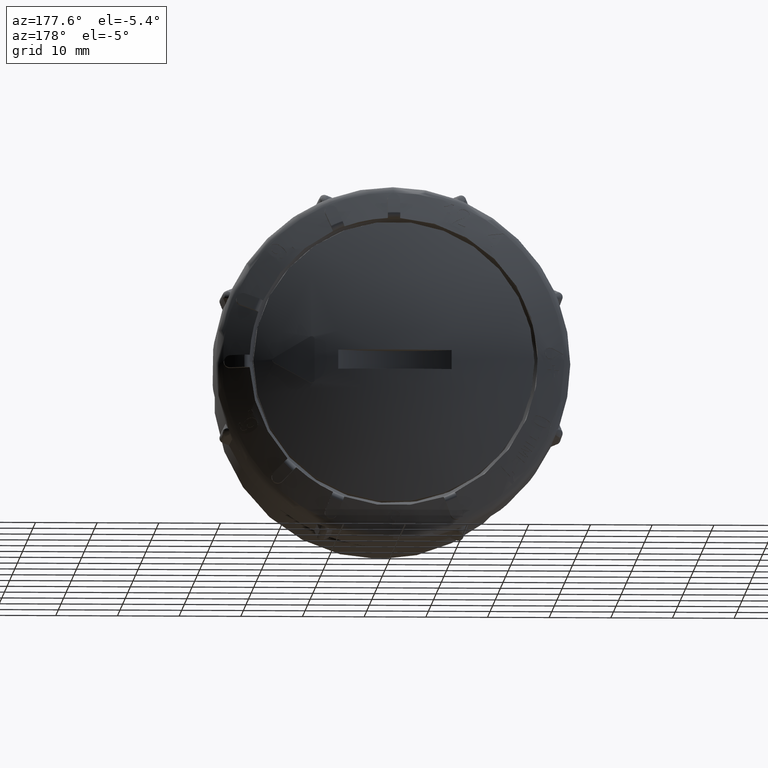
[diagram: clean part render]
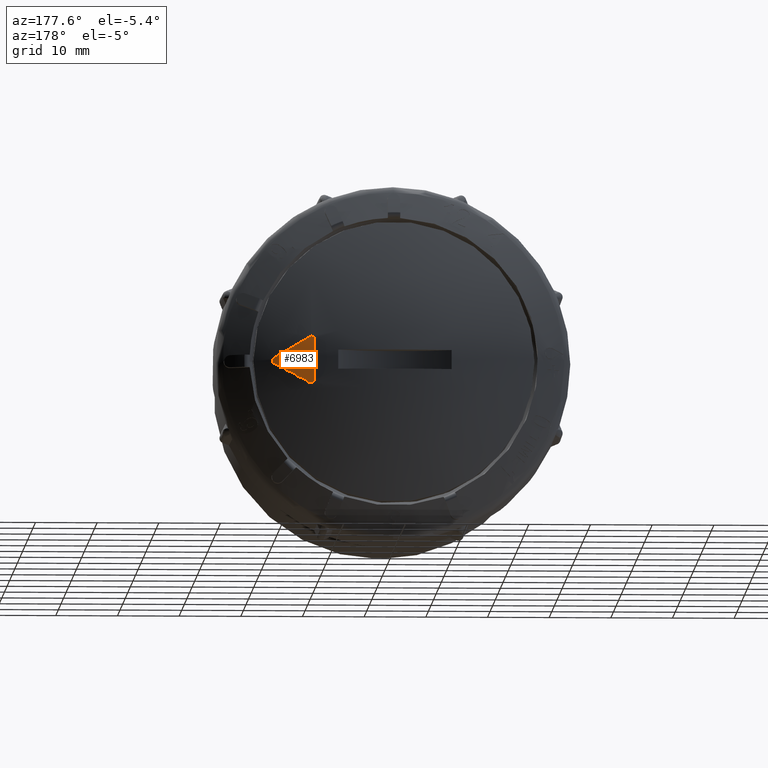
[diagram: same view with one face highlighted and labeled with its STEP entity id]
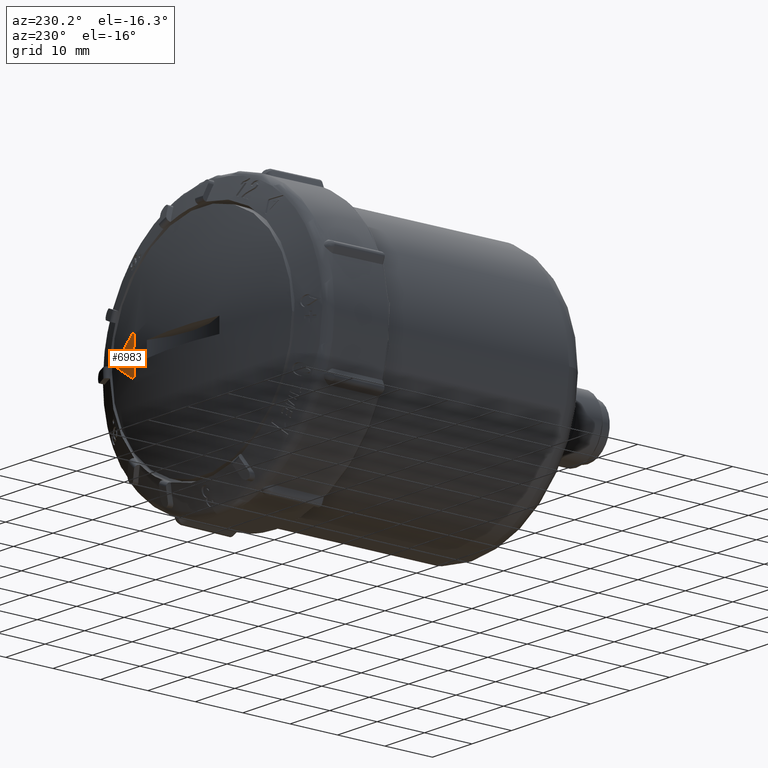
[diagram: same view with one face highlighted and labeled with its STEP entity id]
A machine part, auxiliary view. The second image highlights one B-rep face of the part: STEP entity #6983.
A second angle (auxiliary view) of the same face is appended — the face is thin or edge-on in the first view.
In plain terms, the highlighted spherical surface has radius 57.3 mm.
Its self-contained STEP definition (entity closure, byte-faithful):
#127=SPHERICAL_SURFACE('',#7648,57.3);
#1504=B_SPLINE_CURVE_WITH_KNOTS('',3,(#15634,#15635,#15636,#15637,#15638,
#15639,#15640,#15641,#15642,#15643,#15644,#15645,#15646,#15647),
 .UNSPECIFIED.,.F.,.F.,(4,2,2,2,2,2,4),(0.,0.0189177694231606,0.0378355388463212,
0.0573224649448973,0.0768093910434733,0.0961424441715934,0.100880347302212),
 .UNSPECIFIED.);
#1506=B_SPLINE_CURVE_WITH_KNOTS('',3,(#15674,#15675,#15676,#15677,#15678,
#15679,#15680,#15681,#15682,#15683,#15684,#15685,#15686,#15687),
 .UNSPECIFIED.,.F.,.F.,(4,2,2,2,2,2,4),(0.,0.0193156197583522,0.0386312395167044,
0.0579025182430302,0.0771737969693559,0.0961096925707578,0.101877080758617),
 .UNSPECIFIED.);
#1508=B_SPLINE_CURVE_WITH_KNOTS('',3,(#15712,#15713,#15714,#15715,#15716,
#15717,#15718,#15719,#15720,#15721,#15722,#15723,#15724,#15725),
 .UNSPECIFIED.,.F.,.F.,(4,2,2,2,2,2,4),(0.,0.0194474293695635,0.038894858739127,
0.0577023696434117,0.0765098805476965,0.0960546029899639,0.102299123331093),
 .UNSPECIFIED.);
#1927=FACE_OUTER_BOUND('',#2329,.T.);
#2329=EDGE_LOOP('',(#6425,#6426,#6427,#6428,#6429,#6430));
#2713=CIRCLE('',#7638,55.8058240688192);
#2715=CIRCLE('',#7642,56.4028368080897);
#2717=CIRCLE('',#7646,56.4028368080897);
#3380=VERTEX_POINT('',#15632);
#3381=VERTEX_POINT('',#15633);
#3384=VERTEX_POINT('',#15667);
#3386=VERTEX_POINT('',#15673);
#3388=VERTEX_POINT('',#15705);
#3390=VERTEX_POINT('',#15711);
#4392=EDGE_CURVE('',#3380,#3381,#1504,.T.);
#4396=EDGE_CURVE('',#3384,#3380,#2713,.T.);
#4399=EDGE_CURVE('',#3386,#3384,#1506,.T.);
#4402=EDGE_CURVE('',#3381,#3388,#2715,.T.);
#4405=EDGE_CURVE('',#3388,#3390,#1508,.T.);
#4408=EDGE_CURVE('',#3390,#3386,#2717,.T.);
#6425=ORIENTED_EDGE('',*,*,#4402,.T.);
#6426=ORIENTED_EDGE('',*,*,#4405,.T.);
#6427=ORIENTED_EDGE('',*,*,#4408,.T.);
#6428=ORIENTED_EDGE('',*,*,#4399,.T.);
#6429=ORIENTED_EDGE('',*,*,#4396,.T.);
#6430=ORIENTED_EDGE('',*,*,#4392,.T.);
#6983=ADVANCED_FACE('',(#1927),#127,.T.);
#7638=AXIS2_PLACEMENT_3D('',#15668,#9209,#9210);
#7642=AXIS2_PLACEMENT_3D('',#15706,#9219,#9220);
#7646=AXIS2_PLACEMENT_3D('',#15743,#9229,#9230);
#7648=AXIS2_PLACEMENT_3D('',#15745,#9233,#9234);
#9209=DIRECTION('center_axis',(1.,-2.38869766571352E-33,-5.53566714869006E-50));
#9210=DIRECTION('ref_axis',(-6.76997973048025E-49,-2.60242771818273E-16,
-1.));
#9219=DIRECTION('center_axis',(-0.5,-2.25376851545901E-16,-0.866025403784439));
#9220=DIRECTION('ref_axis',(0.,1.,-2.60242771818273E-16));
#9229=DIRECTION('center_axis',(-0.5,2.25376851545901E-16,0.866025403784438));
#9230=DIRECTION('ref_axis',(0.,-1.,2.60242771818273E-16));
#9233=DIRECTION('center_axis',(6.12323399573677E-17,2.4800793569288E-16,
1.));
#9234=DIRECTION('ref_axis',(1.,0.,0.));
#15632=CARTESIAN_POINT('',(13.,-11.2943197815664,3.29118263931963));
#15633=CARTESIAN_POINT('',(13.7362458317556,-11.4991462308388,3.73185020901147));
#15634=CARTESIAN_POINT('Ctrl Pts',(13.,-11.2943197815664,3.29118263931963));
#15635=CARTESIAN_POINT('Ctrl Pts',(13.,-11.2980387383443,3.35413211133149));
#15636=CARTESIAN_POINT('Ctrl Pts',(13.012611749817,-11.3050429498471,3.420955168023));
#15637=CARTESIAN_POINT('Ctrl Pts',(13.0632199468165,-11.3245476985574,3.54339564313387));
#15638=CARTESIAN_POINT('Ctrl Pts',(13.1012009844258,-11.3370454066268,3.59901988086158));
#15639=CARTESIAN_POINT('Ctrl Pts',(13.1892730192069,-11.3636731813876,3.68802710186641));
#15640=CARTESIAN_POINT('Ctrl Pts',(13.2458205967744,-11.3796971725131,3.72694603079533));
#15641=CARTESIAN_POINT('Ctrl Pts',(13.3696251300878,-11.4128065641993,3.77852163166249));
#15642=CARTESIAN_POINT('Ctrl Pts',(13.4368802855089,-11.4298919425774,3.79118263931963));
#15643=CARTESIAN_POINT('Ctrl Pts',(13.5626213076149,-11.4604457874956,3.79118263931963));
#15644=CARTESIAN_POINT('Ctrl Pts',(13.6297193952733,-11.4760174302399,3.7787006473066));
#15645=CARTESIAN_POINT('Ctrl Pts',(13.7068677057256,-11.4928801905289,3.74667805009664));
#15646=CARTESIAN_POINT('Ctrl Pts',(13.7217621531767,-11.4960838460341,3.73961503884712));
#15647=CARTESIAN_POINT('Ctrl Pts',(13.7362458317556,-11.4991462308388,3.73185020901147));
#15667=CARTESIAN_POINT('',(13.,-11.2943197815664,-3.29118263931964));
#15668=CARTESIAN_POINT('Origin',(13.,-67.0030095600439,1.23622551633252E-14));
#15673=CARTESIAN_POINT('',(13.7456062214796,-11.5011004944875,-3.72644598548459));
#15674=CARTESIAN_POINT('Ctrl Pts',(13.7456062214796,-11.5011004944875,-3.72644598548459));
#15675=CARTESIAN_POINT('Ctrl Pts',(13.690437577876,-11.4895262915174,-3.75755769096625));
#15676=CARTESIAN_POINT('Ctrl Pts',(13.6256938190448,-11.4750797007335,-3.7794393086125));
#15677=CARTESIAN_POINT('Ctrl Pts',(13.4933133531377,-11.4438444048988,-3.79530631381402));
#15678=CARTESIAN_POINT('Ctrl Pts',(13.4256775671816,-11.4270568424569,-3.78930163410607));
#15679=CARTESIAN_POINT('Ctrl Pts',(13.3054882301803,-11.3958827858961,-3.75573712460021));
#15680=CARTESIAN_POINT('Ctrl Pts',(13.2446016710952,-11.3793381851145,-3.72590590557661));
#15681=CARTESIAN_POINT('Ctrl Pts',(13.1396465324329,-11.3490209808249,-3.64388661955966));
#15682=CARTESIAN_POINT('Ctrl Pts',(13.095585067547,-11.3352491667322,-3.5916891569542));
#15683=CARTESIAN_POINT('Ctrl Pts',(13.0339164019497,-11.3138333558206,-3.48233556861247));
#15684=CARTESIAN_POINT('Ctrl Pts',(13.0118696477594,-11.3046945812775,-3.41810427606913));
#15685=CARTESIAN_POINT('Ctrl Pts',(13.0012575570024,-11.2970223636752,-3.33177250249627));
#15686=CARTESIAN_POINT('Ctrl Pts',(13.0000103912482,-11.2955188083758,-3.31143709908161));
#15687=CARTESIAN_POINT('Ctrl Pts',(13.,-11.2943197815664,-3.29118263931964));
#15705=CARTESIAN_POINT('',(19.45,-13.1068130337583,0.433012701892218));
#15706=CARTESIAN_POINT('Origin',(5.04999999999999,-67.0030095600439,8.74685657822284));
#15711=CARTESIAN_POINT('',(19.45,-13.1068130337583,-0.43301270189222));
#15712=CARTESIAN_POINT('Ctrl Pts',(19.45,-13.1068130337583,0.433012701892216));
#15713=CARTESIAN_POINT('Ctrl Pts',(19.5036449383108,-13.1259235254432,0.402040782317811));
#15714=CARTESIAN_POINT('Ctrl Pts',(19.5554519878168,-13.144390409849,0.358001561961809));
#15715=CARTESIAN_POINT('Ctrl Pts',(19.6373280444567,-13.1735862286271,0.251506289036341));
#15716=CARTESIAN_POINT('Ctrl Pts',(19.6673719949186,-13.1843051033528,0.189028217295734));
#15717=CARTESIAN_POINT('Ctrl Pts',(19.6995204069936,-13.1957753979709,0.0661650354779939));
#15718=CARTESIAN_POINT('Ctrl Pts',(19.7043715555645,-13.1975066594509,-0.00157337753974419));
#15719=CARTESIAN_POINT('Ctrl Pts',(19.6865415302875,-13.1911445546776,-0.132930363253192));
#15720=CARTESIAN_POINT('Ctrl Pts',(19.6638716787558,-13.1830555589525,-0.196550684202729));
#15721=CARTESIAN_POINT('Ctrl Pts',(19.6009441235078,-13.1606110577077,-0.305544407088383));
#15722=CARTESIAN_POINT('Ctrl Pts',(19.5559056340949,-13.1445507952307,-0.35744980621835));
#15723=CARTESIAN_POINT('Ctrl Pts',(19.4859587194342,-13.1196241652637,-0.410707635254334));
#15724=CARTESIAN_POINT('Ctrl Pts',(19.4682381924048,-13.1133102138329,-0.422482876597804));
#15725=CARTESIAN_POINT('Ctrl Pts',(19.45,-13.1068130337583,-0.433012701892219));
#15743=CARTESIAN_POINT('Origin',(5.05000000000001,-67.0030095600439,-8.74685657822282));
#15745=CARTESIAN_POINT('Origin',(1.93050397867385E-16,-67.0030095600439,
1.23622551633252E-14));